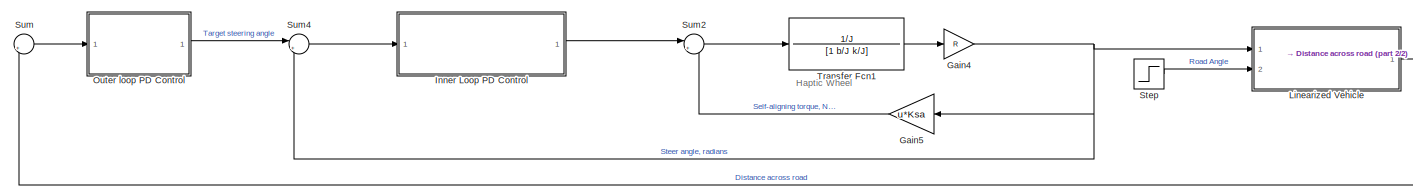
[diagram: root canvas - part 1/2, most of the canvas]
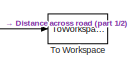
[diagram: root canvas - part 2/2, middle right region]
MODEL slx_69c7f16e8e85
KIND model
CONFIG AbsTol = auto
CONFIG EnableMultiTasking = off
CONFIG FixedStep = auto
CONFIG MaxStep = auto
CONFIG MinStep = auto
CONFIG RelTol = 1e-3
CONFIG SampleTimeConstraint = Unconstrained
CONFIG Solver = VariableStepAuto
CONFIG SolverName = VariableStepAuto
CONFIG StartTime = 0.0
CONFIG StopTime = 10.0
BLOCK [Gain] Gain4
  Gain = R
  OutDataTypeStr = Inherit: Inherit via internal rule
  ParamDataTypeStr = Inherit: Inherit via internal rule
  SaturateOnIntegerOverflow = off
BLOCK [Gain] Gain5
  Gain = u*Ksa
  OutDataTypeStr = Inherit: Inherit via internal rule
  ParamDataTypeStr = Inherit: Inherit via internal rule
  SaturateOnIntegerOverflow = off
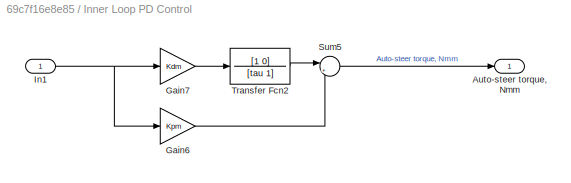
BLOCK [SubSystem] Inner Loop PD Control
  Ports = [1, 1]
  RequestExecContextInheritance = off
BLOCK [Outport] Inner Loop PD Control/Auto-steer torque, Nmm
  IconDisplay = Port number
BLOCK [Gain] Inner Loop PD Control/Gain6
  Gain = Kpm
  OutDataTypeStr = Inherit: Inherit via internal rule
  ParamDataTypeStr = Inherit: Inherit via internal rule
  SaturateOnIntegerOverflow = off
BLOCK [Gain] Inner Loop PD Control/Gain7
  Gain = Kdm
  OutDataTypeStr = Inherit: Inherit via internal rule
  ParamDataTypeStr = Inherit: Inherit via internal rule
  SaturateOnIntegerOverflow = off
BLOCK [Inport] Inner Loop PD Control/In1
  IconDisplay = Port number
BLOCK [Sum] Inner Loop PD Control/Sum5
  IconShape = round
  InputSameDT = off
  Inputs = |++
  OutDataTypeStr = Inherit: Inherit via internal rule
  Ports = [2, 1]
  SaturateOnIntegerOverflow = off
BLOCK [TransferFcn] Inner Loop PD Control/Transfer Fcn2
  Denominator = [tau 1]
  Numerator = [1 0]
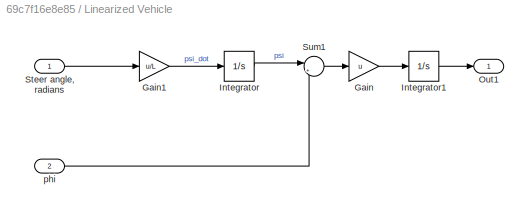
BLOCK [SubSystem] Linearized Vehicle
  Ports = [2, 1]
  RequestExecContextInheritance = off
BLOCK [Gain] Linearized Vehicle/Gain
  Gain = u
  OutDataTypeStr = Inherit: Inherit via internal rule
  ParamDataTypeStr = Inherit: Inherit via internal rule
  SaturateOnIntegerOverflow = off
BLOCK [Gain] Linearized Vehicle/Gain1
  Gain = u/L
  OutDataTypeStr = Inherit: Inherit via internal rule
  ParamDataTypeStr = Inherit: Inherit via internal rule
  SaturateOnIntegerOverflow = off
BLOCK [Integrator] Linearized Vehicle/Integrator
  Ports = [1, 1]
BLOCK [Integrator] Linearized Vehicle/Integrator1
  Ports = [1, 1]
BLOCK [Outport] Linearized Vehicle/Out1
  IconDisplay = Port number
BLOCK [Inport] Linearized Vehicle/Steer angle, radians
  IconDisplay = Port number
BLOCK [Sum] Linearized Vehicle/Sum1
  IconShape = round
  InputSameDT = off
  Inputs = |+-
  OutDataTypeStr = Inherit: Inherit via internal rule
  Ports = [2, 1]
  SaturateOnIntegerOverflow = off
BLOCK [Inport] Linearized Vehicle/phi
  IconDisplay = Port number
  Port = 2
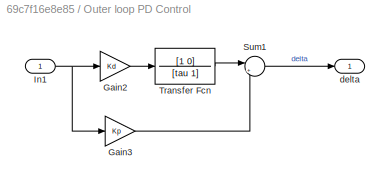
BLOCK [SubSystem] Outer loop PD Control
  Ports = [1, 1]
  RequestExecContextInheritance = off
BLOCK [Gain] Outer loop PD Control/Gain2
  Gain = Kd
  OutDataTypeStr = Inherit: Inherit via internal rule
  ParamDataTypeStr = Inherit: Inherit via internal rule
  SaturateOnIntegerOverflow = off
BLOCK [Gain] Outer loop PD Control/Gain3
  Gain = Kp
  OutDataTypeStr = Inherit: Inherit via internal rule
  ParamDataTypeStr = Inherit: Inherit via internal rule
  SaturateOnIntegerOverflow = off
BLOCK [Inport] Outer loop PD Control/In1
  IconDisplay = Port number
BLOCK [Sum] Outer loop PD Control/Sum1
  IconShape = round
  InputSameDT = off
  Inputs = |++
  OutDataTypeStr = Inherit: Inherit via internal rule
  Ports = [2, 1]
  SaturateOnIntegerOverflow = off
BLOCK [TransferFcn] Outer loop PD Control/Transfer Fcn
  Denominator = [tau 1]
  Numerator = [1 0]
BLOCK [Outport] Outer loop PD Control/delta
  IconDisplay = Port number
BLOCK [Step] Step
  SampleTime = 0
BLOCK [Sum] Sum
  IconShape = round
  InputSameDT = off
  Inputs = |+-
  OutDataTypeStr = Inherit: Inherit via internal rule
  Ports = [2, 1]
  SaturateOnIntegerOverflow = off
BLOCK [Sum] Sum2
  IconShape = round
  InputSameDT = off
  Inputs = |+-
  OutDataTypeStr = Inherit: Inherit via internal rule
  Ports = [2, 1]
  SaturateOnIntegerOverflow = off
BLOCK [Sum] Sum4
  IconShape = round
  InputSameDT = off
  Inputs = |+-
  OutDataTypeStr = Inherit: Inherit via internal rule
  Ports = [2, 1]
  SaturateOnIntegerOverflow = off
BLOCK [ToWorkspace] To Workspace
  FixptAsFi = on
  MaxDataPoints = inf
  Ports = [1]
  SampleTime = -1
  Save2DSignal = 3-D array (concatenate along third dimension)
  VariableName = distance
BLOCK [TransferFcn] Transfer Fcn1
  Denominator = [1 b/J k/J]
  Numerator = 1/J
ANNOTATION (root): Haptic Wheel
NET Gain4:1 -> Gain5:1, Linearized Vehicle:1, Sum4:2
LINE Gain5:1 -> Sum2:2
LINE Inner Loop PD Control/Gain6:1 -> Inner Loop PD Control/Sum5:2
LINE Inner Loop PD Control/Gain7:1 -> Inner Loop PD Control/Transfer Fcn2:1
NET Inner Loop PD Control/In1:1 -> Inner Loop PD Control/Gain6:1, Inner Loop PD Control/Gain7:1
LINE Inner Loop PD Control/Sum5:1 -> Inner Loop PD Control/Auto-steer torque, Nmm:1
LINE Inner Loop PD Control/Transfer Fcn2:1 -> Inner Loop PD Control/Sum5:1
LINE Inner Loop PD Control:1 -> Sum2:1
LINE Linearized Vehicle/Gain1:1 -> Linearized Vehicle/Integrator:1
LINE Linearized Vehicle/Gain:1 -> Linearized Vehicle/Integrator1:1
LINE Linearized Vehicle/Integrator1:1 -> Linearized Vehicle/Out1:1
LINE Linearized Vehicle/Integrator:1 -> Linearized Vehicle/Sum1:1
LINE Linearized Vehicle/Steer angle, radians:1 -> Linearized Vehicle/Gain1:1
LINE Linearized Vehicle/Sum1:1 -> Linearized Vehicle/Gain:1
LINE Linearized Vehicle/phi:1 -> Linearized Vehicle/Sum1:2
NET Linearized Vehicle:1 -> Sum:2, To Workspace:1
LINE Outer loop PD Control/Gain2:1 -> Outer loop PD Control/Transfer Fcn:1
LINE Outer loop PD Control/Gain3:1 -> Outer loop PD Control/Sum1:2
NET Outer loop PD Control/In1:1 -> Outer loop PD Control/Gain2:1, Outer loop PD Control/Gain3:1
LINE Outer loop PD Control/Sum1:1 -> Outer loop PD Control/delta:1
LINE Outer loop PD Control/Transfer Fcn:1 -> Outer loop PD Control/Sum1:1
LINE Outer loop PD Control:1 -> Sum4:1
LINE Step:1 -> Linearized Vehicle:2
LINE Sum2:1 -> Transfer Fcn1:1
LINE Sum4:1 -> Inner Loop PD Control:1
LINE Sum:1 -> Outer loop PD Control:1
LINE Transfer Fcn1:1 -> Gain4:1
note: NET lines group one-source signal fan-out (src -> all destinations, sorted); 1:1 wires keep LINE
